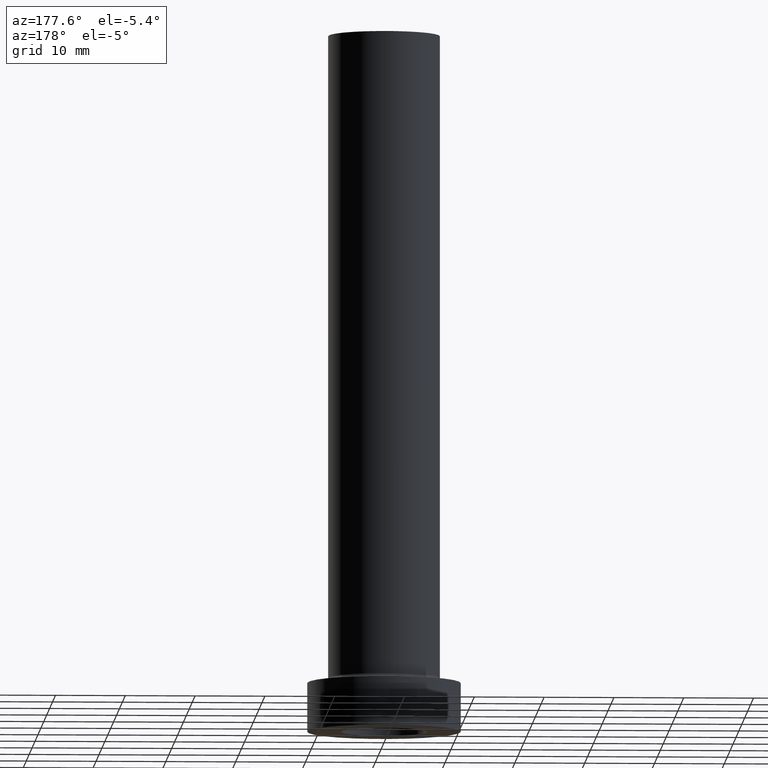
[diagram: clean part render]
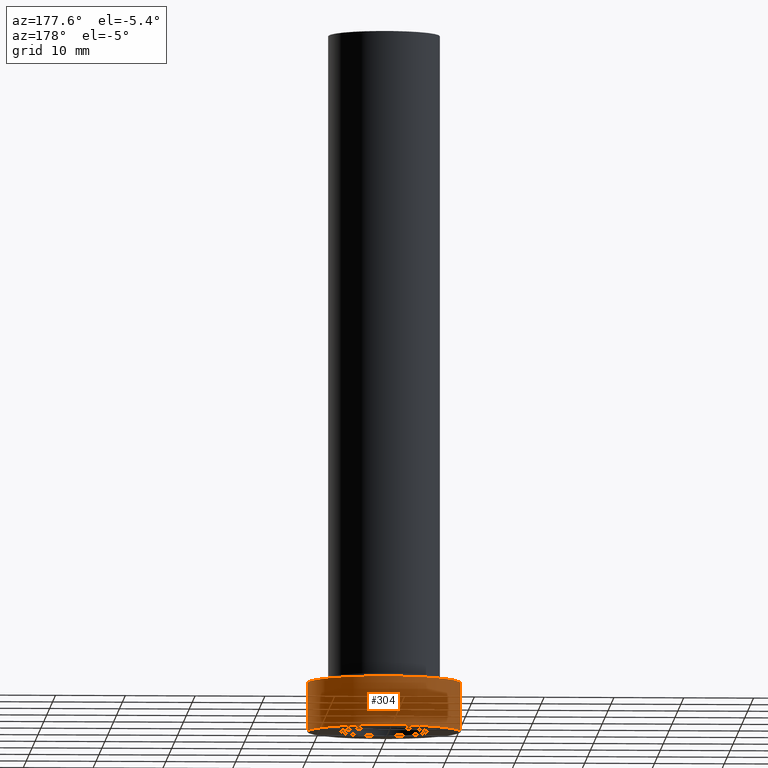
[diagram: same view with one face highlighted and labeled with its STEP entity id]
A machine part, auxiliary view. The second image highlights one B-rep face of the part: STEP entity #304.
In plain terms, the highlighted cylindrical surface (partial cylindrical patch) has radius 11 mm, axis along (-0, -0, -1).
Its self-contained STEP definition (entity closure, byte-faithful):
#5 = LINE ( 'NONE', #253, #378 ) ;
#10 = DIRECTION ( 'NONE',  ( -0.000000000000000000, -0.000000000000000000, -1.000000000000000000 ) ) ;
#11 = VERTEX_POINT ( 'NONE', #305 ) ;
#36 = DIRECTION ( 'NONE',  ( 0.000000000000000000, 0.000000000000000000, 1.000000000000000000 ) ) ;
#44 = CARTESIAN_POINT ( 'NONE',  ( 0.000000000000000000, 0.000000000000000000, 7.000000000000000000 ) ) ;
#45 = VERTEX_POINT ( 'NONE', #363 ) ;
#76 = AXIS2_PLACEMENT_3D ( 'NONE', #44, #244, #185 ) ;
#87 = ORIENTED_EDGE ( 'NONE', *, *, #404, .T. ) ;
#103 = CARTESIAN_POINT ( 'NONE',  ( -11.00000000000000000, 0.000000000000000000, 7.000000000000000000 ) ) ;
#108 = DIRECTION ( 'NONE',  ( 1.000000000000000000, 0.000000000000000000, 0.000000000000000000 ) ) ;
#109 = EDGE_CURVE ( 'NONE', #126, #45, #192, .T. ) ;
#124 = AXIS2_PLACEMENT_3D ( 'NONE', #391, #10, #181 ) ;
#126 = VERTEX_POINT ( 'NONE', #103 ) ;
#150 = CARTESIAN_POINT ( 'NONE',  ( 11.00000000000000000, 1.347111479062088405E-15, 7.000000000000000000 ) ) ;
#175 = CARTESIAN_POINT ( 'NONE',  ( 0.000000000000000000, 0.000000000000000000, 0.000000000000000000 ) ) ;
#179 = AXIS2_PLACEMENT_3D ( 'NONE', #175, #36, #108 ) ;
#181 = DIRECTION ( 'NONE',  ( -1.000000000000000000, 0.000000000000000000, 0.000000000000000000 ) ) ;
#185 = DIRECTION ( 'NONE',  ( 1.000000000000000000, 0.000000000000000000, 0.000000000000000000 ) ) ;
#190 = ORIENTED_EDGE ( 'NONE', *, *, #109, .F. ) ;
#192 = LINE ( 'NONE', #439, #310 ) ;
#244 = DIRECTION ( 'NONE',  ( 0.000000000000000000, 0.000000000000000000, 1.000000000000000000 ) ) ;
#248 = CYLINDRICAL_SURFACE ( 'NONE', #124, 11.00000000000000000 ) ;
#251 = ORIENTED_EDGE ( 'NONE', *, *, #381, .T. ) ;
#253 = CARTESIAN_POINT ( 'NONE',  ( 11.00000000000000000, 1.347111479062088405E-15, 7.000000000000000000 ) ) ;
#281 = DIRECTION ( 'NONE',  ( -0.000000000000000000, -0.000000000000000000, -1.000000000000000000 ) ) ;
#304 = ADVANCED_FACE ( 'NONE', ( #387 ), #248, .T. ) ;
#305 = CARTESIAN_POINT ( 'NONE',  ( 11.00000000000000000, 1.347111479062088405E-15, 0.000000000000000000 ) ) ;
#306 = CIRCLE ( 'NONE', #76, 11.00000000000000000 ) ;
#310 = VECTOR ( 'NONE', #412, 1000.000000000000000 ) ;
#320 = VERTEX_POINT ( 'NONE', #150 ) ;
#363 = CARTESIAN_POINT ( 'NONE',  ( -11.00000000000000000, 0.000000000000000000, 0.000000000000000000 ) ) ;
#378 = VECTOR ( 'NONE', #281, 1000.000000000000000 ) ;
#381 = EDGE_CURVE ( 'NONE', #320, #11, #5, .T. ) ;
#387 = FACE_OUTER_BOUND ( 'NONE', #406, .T. ) ;
#391 = CARTESIAN_POINT ( 'NONE',  ( 0.000000000000000000, 0.000000000000000000, 7.000000000000000000 ) ) ;
#404 = EDGE_CURVE ( 'NONE', #11, #45, #423, .T. ) ;
#406 = EDGE_LOOP ( 'NONE', ( #426, #251, #87, #190 ) ) ;
#412 = DIRECTION ( 'NONE',  ( -0.000000000000000000, -0.000000000000000000, -1.000000000000000000 ) ) ;
#414 = EDGE_CURVE ( 'NONE', #320, #126, #306, .T. ) ;
#423 = CIRCLE ( 'NONE', #179, 11.00000000000000000 ) ;
#426 = ORIENTED_EDGE ( 'NONE', *, *, #414, .F. ) ;
#439 = CARTESIAN_POINT ( 'NONE',  ( -11.00000000000000000, 0.000000000000000000, 7.000000000000000000 ) ) ;